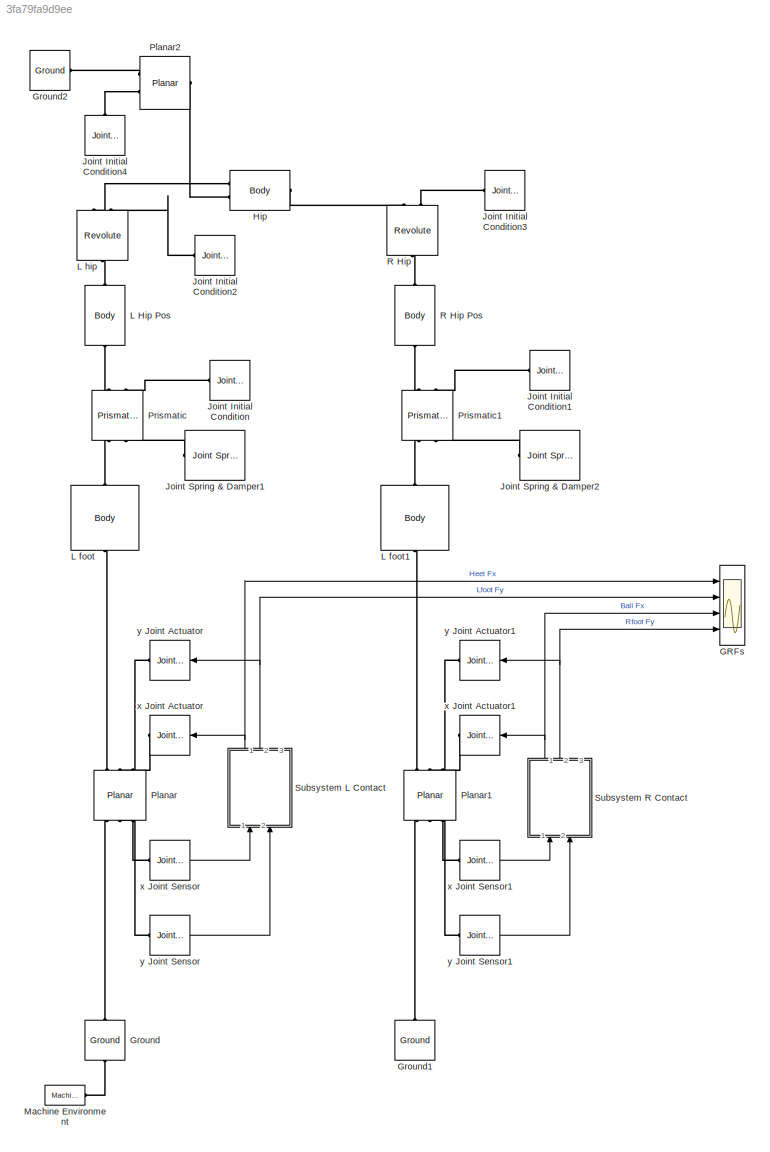
MODEL slx_3fa79fa9d9ee
KIND model
CONFIG AbsTol = auto
CONFIG FixedStep = auto
CONFIG MaxStep = auto
CONFIG MinStep = auto
CONFIG RelTol = 1e-3
CONFIG SampleTimeConstraint = Unconstrained
CONFIG Solver = ode45
CONFIG SolverMode = Auto
CONFIG SolverName = ode45
CONFIG StartTime = 0.0
CONFIG StopTime = 10.0
BLOCK [Scope] GRFs
  NumInputPorts = 4
  Ports = [4]
  ScopeSpecificationString = Simulink.scopes.TimeScopeBlockCfg('CurrentConfiguration', extmgr.ConfigurationSet(extmgr.Configuration('Core','General UI',true),extmgr.Configuration('Core','Source UI',true),extmgr.Configuration('Sources','WiredSimulink',true,'DataLoggingVariableName','ScopeData1','DataLoggingSaveFormat','StructureWithTime','DataLoggingDecimation','1','DataLoggingDecimateData',true),extmgr.Configuration('Visuals'...<+3712ch>
BLOCK [Reference] Ground  REF=mblibv1/Bodies/Ground
  Ports = [0, 0, 0, 0, 0, 1, 1]
  SourceBlock = mblibv1/Bodies/Ground
  SourceType = Ground
  UserDataPersistent = on
BLOCK [Reference] Ground1  REF=mblibv1/Bodies/Ground
  Ports = [0, 0, 0, 0, 0, 0, 1]
  SourceBlock = mblibv1/Bodies/Ground
  SourceType = Ground
  UserDataPersistent = on
BLOCK [Reference] Ground2  REF=mblibv1/Bodies/Ground
  Ports = [0, 0, 0, 0, 0, 0, 1]
  SourceBlock = mblibv1/Bodies/Ground
  SourceType = Ground
  UserDataPersistent = on
BLOCK [Reference] Hip  REF=mblibv1/Bodies/Body
  Ports = [0, 0, 0, 0, 0, 2, 1]
  SourceBlock = mblibv1/Bodies/Body
  SourceType = Body
BLOCK [Reference] Joint Initial Condition  REF=mblibv1/Sensors & 
Actuators/Joint Initial Condition
  Ports = [0, 0, 0, 0, 0, 0, 1]
  SourceBlock = mblibv1/Sensors & \nActuators/Joint Initial Condition
  SourceType = Joint Initial Condition
BLOCK [Reference] Joint Initial Condition1  REF=mblibv1/Sensors & 
Actuators/Joint Initial Condition
  Ports = [0, 0, 0, 0, 0, 0, 1]
  SourceBlock = mblibv1/Sensors & \nActuators/Joint Initial Condition
  SourceType = Joint Initial Condition
BLOCK [Reference] Joint Initial Condition2  REF=mblibv1/Sensors & 
Actuators/Joint Initial Condition
  Ports = [0, 0, 0, 0, 0, 0, 1]
  SourceBlock = mblibv1/Sensors & \nActuators/Joint Initial Condition
  SourceType = Joint Initial Condition
BLOCK [Reference] Joint Initial Condition3  REF=mblibv1/Sensors & 
Actuators/Joint Initial Condition
  Ports = [0, 0, 0, 0, 0, 0, 1]
  SourceBlock = mblibv1/Sensors & \nActuators/Joint Initial Condition
  SourceType = Joint Initial Condition
BLOCK [Reference] Joint Initial Condition4  REF=mblibv1/Sensors & 
Actuators/Joint Initial Condition
  Ports = [0, 0, 0, 0, 0, 0, 1]
  SourceBlock = mblibv1/Sensors & \nActuators/Joint Initial Condition
  SourceType = Joint Initial Condition
BLOCK [Reference] Joint Spring & Damper1  REF=mblibv1/Force 
Elements/Joint Spring & Damper
  Ports = [0, 0, 0, 0, 0, 1]
  SourceBlock = mblibv1/Force \nElements/Joint Spring & Damper
  SourceType = Joint Spring & Damper
BLOCK [Reference] Joint Spring & Damper2  REF=mblibv1/Force 
Elements/Joint Spring & Damper
  Ports = [0, 0, 0, 0, 0, 1]
  SourceBlock = mblibv1/Force \nElements/Joint Spring & Damper
  SourceType = Joint Spring & Damper
BLOCK [Reference] L Hip Pos  REF=mblibv1/Bodies/Body
  Ports = [0, 0, 0, 0, 0, 1, 1]
  SourceBlock = mblibv1/Bodies/Body
  SourceType = Body
BLOCK [Reference] L foot  REF=mblibv1/Bodies/Body
  Ports = [0, 0, 0, 0, 0, 1, 1]
  SourceBlock = mblibv1/Bodies/Body
  SourceType = Body
BLOCK [Reference] L foot1  REF=mblibv1/Bodies/Body
  Ports = [0, 0, 0, 0, 0, 1, 1]
  SourceBlock = mblibv1/Bodies/Body
  SourceType = Body
BLOCK [Reference] L hip  REF=mblibv1/Joints/Revolute
  Ports = [0, 0, 0, 0, 0, 2, 1]
  SourceBlock = mblibv1/Joints/Revolute
  SourceType = Revolute
BLOCK [Reference] Machine Environment  REF=mblibv1/Bodies/Machine
Environment
  Ports = [0, 0, 0, 0, 0, 0, 1]
  SourceBlock = mblibv1/Bodies/Machine\nEnvironment
  SourceType = Machine Environment
BLOCK [Reference] Planar  REF=mblibv1/Joints/Planar
  Ports = [0, 0, 0, 0, 0, 3, 3]
  SourceBlock = mblibv1/Joints/Planar
  SourceType = Planar
BLOCK [Reference] Planar1  REF=mblibv1/Joints/Planar
  Ports = [0, 0, 0, 0, 0, 3, 3]
  SourceBlock = mblibv1/Joints/Planar
  SourceType = Planar
BLOCK [Reference] Planar2  REF=mblibv1/Joints/Planar
  Ports = [0, 0, 0, 0, 0, 2, 1]
  SourceBlock = mblibv1/Joints/Planar
  SourceType = Planar
BLOCK [Reference] Prismatic  REF=mblibv1/Joints/Prismatic
  Ports = [0, 0, 0, 0, 0, 2, 2]
  SourceBlock = mblibv1/Joints/Prismatic
  SourceType = Prismatic
BLOCK [Reference] Prismatic1  REF=mblibv1/Joints/Prismatic
  Ports = [0, 0, 0, 0, 0, 2, 2]
  SourceBlock = mblibv1/Joints/Prismatic
  SourceType = Prismatic
BLOCK [Reference] R Hip  REF=mblibv1/Joints/Revolute
  Ports = [0, 0, 0, 0, 0, 2, 1]
  SourceBlock = mblibv1/Joints/Revolute
  SourceType = Revolute
BLOCK [Reference] R Hip Pos  REF=mblibv1/Bodies/Body
  Ports = [0, 0, 0, 0, 0, 1, 1]
  SourceBlock = mblibv1/Bodies/Body
  SourceType = Body
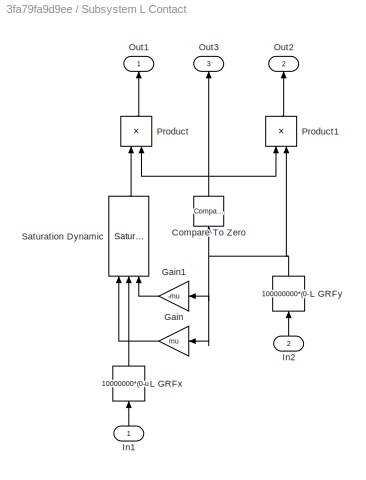
BLOCK [SubSystem] Subsystem L Contact
  Ports = [2, 3]
  RequestExecContextInheritance = off
  Variant = off
BLOCK [Reference] Subsystem L Contact/Compare To Zero  REF=simulink/Logic and Bit
Operations/Compare
To Zero
  Ports = [1, 1]
  SourceBlock = simulink/Logic and Bit\nOperations/Compare\nTo Zero
  SourceType = Compare To Zero
BLOCK [Gain] Subsystem L Contact/Gain
  Gain = mu
  OutDataTypeStr = Inherit: Inherit via internal rule
  ParamDataTypeStr = Inherit: Inherit via internal rule
  SaturateOnIntegerOverflow = off
BLOCK [Gain] Subsystem L Contact/Gain1
  Gain = -mu
  OutDataTypeStr = Inherit: Inherit via internal rule
  ParamDataTypeStr = Inherit: Inherit via internal rule
  SaturateOnIntegerOverflow = off
BLOCK [Inport] Subsystem L Contact/In1
  IconDisplay = Port number
BLOCK [Inport] Subsystem L Contact/In2
  IconDisplay = Port number
  Port = 2
BLOCK [Fcn] Subsystem L Contact/L GRFx
  Expr = 10000000*(0-u(1))+1000000*(0-u(2))
BLOCK [Fcn] Subsystem L Contact/L GRFy
  Expr = 100000000*(0-u(1))+10000000*(0-u(2))
BLOCK [Outport] Subsystem L Contact/Out1
  IconDisplay = Port number
  InitialOutput = 0
  OutputWhenDisabled = reset
BLOCK [Outport] Subsystem L Contact/Out2
  IconDisplay = Port number
  InitialOutput = 0
  OutputWhenDisabled = reset
  Port = 2
BLOCK [Outport] Subsystem L Contact/Out3
  IconDisplay = Port number
  InitialOutput = 0
  OutputWhenDisabled = reset
  Port = 3
BLOCK [Product] Subsystem L Contact/Product
  InputSameDT = off
  OutDataTypeStr = Inherit: Inherit via internal rule
  Ports = [2, 1]
  SaturateOnIntegerOverflow = off
BLOCK [Product] Subsystem L Contact/Product1
  InputSameDT = off
  OutDataTypeStr = Inherit: Inherit via internal rule
  Ports = [2, 1]
  SaturateOnIntegerOverflow = off
BLOCK [Reference] Subsystem L Contact/Saturation Dynamic  REF=simulink/Discontinuities/Saturation
Dynamic
  Ports = [3, 1]
  SourceBlock = simulink/Discontinuities/Saturation\nDynamic
  SourceType = Saturation Dynamic
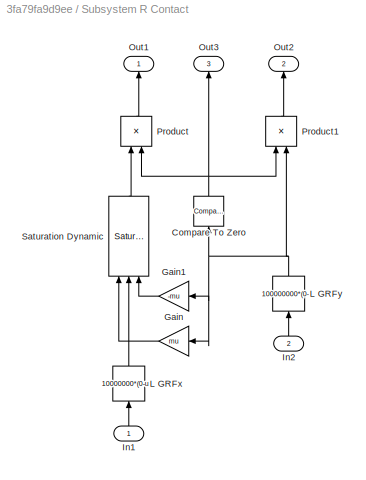
BLOCK [SubSystem] Subsystem R Contact
  Ports = [2, 3]
  RequestExecContextInheritance = off
  Variant = off
BLOCK [Reference] Subsystem R Contact/Compare To Zero  REF=simulink/Logic and Bit
Operations/Compare
To Zero
  Ports = [1, 1]
  SourceBlock = simulink/Logic and Bit\nOperations/Compare\nTo Zero
  SourceType = Compare To Zero
BLOCK [Gain] Subsystem R Contact/Gain
  Gain = mu
  OutDataTypeStr = Inherit: Inherit via internal rule
  ParamDataTypeStr = Inherit: Inherit via internal rule
  SaturateOnIntegerOverflow = off
BLOCK [Gain] Subsystem R Contact/Gain1
  Gain = -mu
  OutDataTypeStr = Inherit: Inherit via internal rule
  ParamDataTypeStr = Inherit: Inherit via internal rule
  SaturateOnIntegerOverflow = off
BLOCK [Inport] Subsystem R Contact/In1
  IconDisplay = Port number
BLOCK [Inport] Subsystem R Contact/In2
  IconDisplay = Port number
  Port = 2
BLOCK [Fcn] Subsystem R Contact/L GRFx
  Expr = 10000000*(0-u(1))+1000000*(0-u(2))
BLOCK [Fcn] Subsystem R Contact/L GRFy
  Expr = 100000000*(0-u(1))+10000000*(0-u(2))
BLOCK [Outport] Subsystem R Contact/Out1
  IconDisplay = Port number
  InitialOutput = 0
  OutputWhenDisabled = reset
BLOCK [Outport] Subsystem R Contact/Out2
  IconDisplay = Port number
  InitialOutput = 0
  OutputWhenDisabled = reset
  Port = 2
BLOCK [Outport] Subsystem R Contact/Out3
  IconDisplay = Port number
  InitialOutput = 0
  OutputWhenDisabled = reset
  Port = 3
BLOCK [Product] Subsystem R Contact/Product
  InputSameDT = off
  OutDataTypeStr = Inherit: Inherit via internal rule
  Ports = [2, 1]
  SaturateOnIntegerOverflow = off
BLOCK [Product] Subsystem R Contact/Product1
  InputSameDT = off
  OutDataTypeStr = Inherit: Inherit via internal rule
  Ports = [2, 1]
  SaturateOnIntegerOverflow = off
BLOCK [Reference] Subsystem R Contact/Saturation Dynamic  REF=simulink/Discontinuities/Saturation
Dynamic
  Ports = [3, 1]
  SourceBlock = simulink/Discontinuities/Saturation\nDynamic
  SourceType = Saturation Dynamic
BLOCK [Reference] x Joint Actuator  REF=mblibv1/Sensors & 
Actuators/Joint Actuator
  Ports = [1, 0, 0, 0, 0, 0, 1]
  SourceBlock = mblibv1/Sensors & \nActuators/Joint Actuator
  SourceType = Joint Actuator
BLOCK [Reference] x Joint Actuator1  REF=mblibv1/Sensors & 
Actuators/Joint Actuator
  Ports = [1, 0, 0, 0, 0, 0, 1]
  SourceBlock = mblibv1/Sensors & \nActuators/Joint Actuator
  SourceType = Joint Actuator
BLOCK [Reference] x Joint Sensor  REF=mblibv1/Sensors & 
Actuators/Joint Sensor
  Ports = [0, 1, 0, 0, 0, 1]
  SourceBlock = mblibv1/Sensors & \nActuators/Joint Sensor
  SourceType = Joint Sensor
BLOCK [Reference] x Joint Sensor1  REF=mblibv1/Sensors & 
Actuators/Joint Sensor
  Ports = [0, 1, 0, 0, 0, 1]
  SourceBlock = mblibv1/Sensors & \nActuators/Joint Sensor
  SourceType = Joint Sensor
BLOCK [Reference] y Joint Actuator  REF=mblibv1/Sensors & 
Actuators/Joint Actuator
  Ports = [1, 0, 0, 0, 0, 0, 1]
  SourceBlock = mblibv1/Sensors & \nActuators/Joint Actuator
  SourceType = Joint Actuator
BLOCK [Reference] y Joint Actuator1  REF=mblibv1/Sensors & 
Actuators/Joint Actuator
  Ports = [1, 0, 0, 0, 0, 0, 1]
  SourceBlock = mblibv1/Sensors & \nActuators/Joint Actuator
  SourceType = Joint Actuator
BLOCK [Reference] y Joint Sensor  REF=mblibv1/Sensors & 
Actuators/Joint Sensor
  Ports = [0, 1, 0, 0, 0, 1]
  SourceBlock = mblibv1/Sensors & \nActuators/Joint Sensor
  SourceType = Joint Sensor
BLOCK [Reference] y Joint Sensor1  REF=mblibv1/Sensors & 
Actuators/Joint Sensor
  Ports = [0, 1, 0, 0, 0, 1]
  SourceBlock = mblibv1/Sensors & \nActuators/Joint Sensor
  SourceType = Joint Sensor
NET Subsystem L Contact/Compare To Zero:1 -> Subsystem L Contact/Out3:1, Subsystem L Contact/Product1:1, Subsystem L Contact/Product:2
LINE Subsystem L Contact/Gain1:1 -> Subsystem L Contact/Saturation Dynamic:3
LINE Subsystem L Contact/Gain:1 -> Subsystem L Contact/Saturation Dynamic:1
LINE Subsystem L Contact/In1:1 -> Subsystem L Contact/L GRFx:1
LINE Subsystem L Contact/In2:1 -> Subsystem L Contact/L GRFy:1
LINE Subsystem L Contact/L GRFx:1 -> Subsystem L Contact/Saturation Dynamic:2
NET Subsystem L Contact/L GRFy:1 -> Subsystem L Contact/Compare To Zero:1, Subsystem L Contact/Gain1:1, Subsystem L Contact/Gain:1, Subsystem L Contact/Product1:2
LINE Subsystem L Contact/Product1:1 -> Subsystem L Contact/Out2:1
LINE Subsystem L Contact/Product:1 -> Subsystem L Contact/Out1:1
LINE Subsystem L Contact/Saturation Dynamic:1 -> Subsystem L Contact/Product:1
NET Subsystem L Contact:1 -> GRFs:1, x Joint Actuator:1
NET Subsystem L Contact:2 -> GRFs:2, y Joint Actuator:1
NET Subsystem R Contact/Compare To Zero:1 -> Subsystem R Contact/Out3:1, Subsystem R Contact/Product1:1, Subsystem R Contact/Product:2
LINE Subsystem R Contact/Gain1:1 -> Subsystem R Contact/Saturation Dynamic:3
LINE Subsystem R Contact/Gain:1 -> Subsystem R Contact/Saturation Dynamic:1
LINE Subsystem R Contact/In1:1 -> Subsystem R Contact/L GRFx:1
LINE Subsystem R Contact/In2:1 -> Subsystem R Contact/L GRFy:1
LINE Subsystem R Contact/L GRFx:1 -> Subsystem R Contact/Saturation Dynamic:2
NET Subsystem R Contact/L GRFy:1 -> Subsystem R Contact/Compare To Zero:1, Subsystem R Contact/Gain1:1, Subsystem R Contact/Gain:1, Subsystem R Contact/Product1:2
LINE Subsystem R Contact/Product1:1 -> Subsystem R Contact/Out2:1
LINE Subsystem R Contact/Product:1 -> Subsystem R Contact/Out1:1
LINE Subsystem R Contact/Saturation Dynamic:1 -> Subsystem R Contact/Product:1
NET Subsystem R Contact:1 -> GRFs:3, x Joint Actuator1:1
NET Subsystem R Contact:2 -> GRFs:4, y Joint Actuator1:1
LINE x Joint Sensor1:1 -> Subsystem R Contact:1
LINE x Joint Sensor:1 -> Subsystem L Contact:1
LINE y Joint Sensor1:1 -> Subsystem R Contact:2
LINE y Joint Sensor:1 -> Subsystem L Contact:2
PLINE Ground1:RConn1 -- Planar1:LConn1
PLINE Ground2:RConn1 -- Planar2:LConn1
PLINE Ground:LConn1 -- Machine Environment:RConn1
PLINE Ground:RConn1 -- Planar:LConn1
PLINE Hip:LConn1 -- L hip:LConn1
PLINE Hip:LConn2 -- Planar2:RConn1
PLINE Hip:RConn1 -- R Hip:LConn1
PLINE Joint Initial Condition1:RConn1 -- Prismatic1:LConn2
PLINE Joint Initial Condition2:RConn1 -- L hip:LConn2
PLINE Joint Initial Condition3:RConn1 -- R Hip:LConn2
PLINE Joint Initial Condition4:RConn1 -- Planar2:LConn2
PLINE Joint Initial Condition:RConn1 -- Prismatic:LConn2
PLINE Joint Spring & Damper1:LConn1 -- Prismatic:RConn2
PLINE Joint Spring & Damper2:LConn1 -- Prismatic1:RConn2
PLINE L Hip Pos:LConn1 -- Prismatic:LConn1
PLINE L Hip Pos:RConn1 -- L hip:RConn1
PLINE L foot1:LConn1 -- Planar1:RConn1
PLINE L foot1:RConn1 -- Prismatic1:RConn1
PLINE L foot:LConn1 -- Planar:RConn1
PLINE L foot:RConn1 -- Prismatic:RConn1
PLINE Planar1:LConn2 -- y Joint Sensor1:LConn1
PLINE Planar1:LConn3 -- x Joint Sensor1:LConn1
PLINE Planar1:RConn2 -- y Joint Actuator1:RConn1
PLINE Planar1:RConn3 -- x Joint Actuator1:RConn1
PLINE Planar:LConn2 -- y Joint Sensor:LConn1
PLINE Planar:LConn3 -- x Joint Sensor:LConn1
PLINE Planar:RConn2 -- y Joint Actuator:RConn1
PLINE Planar:RConn3 -- x Joint Actuator:RConn1
PLINE Prismatic1:LConn1 -- R Hip Pos:LConn1
PLINE R Hip Pos:RConn1 -- R Hip:RConn1
note: NET lines group one-source signal fan-out (src -> all destinations, sorted); 1:1 wires keep LINE
